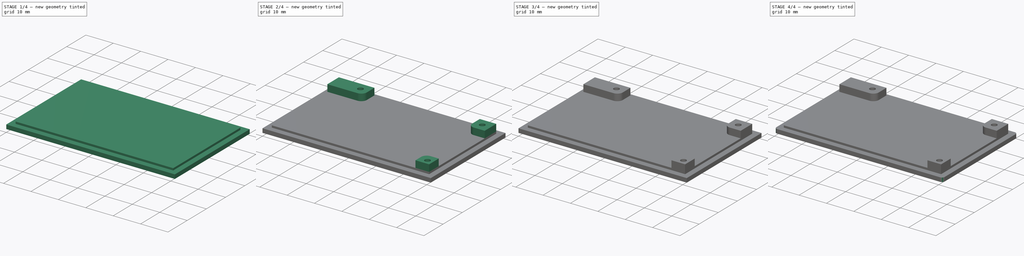
[diagram: build sequence overview — one tinted view per stage of 4, left to right]
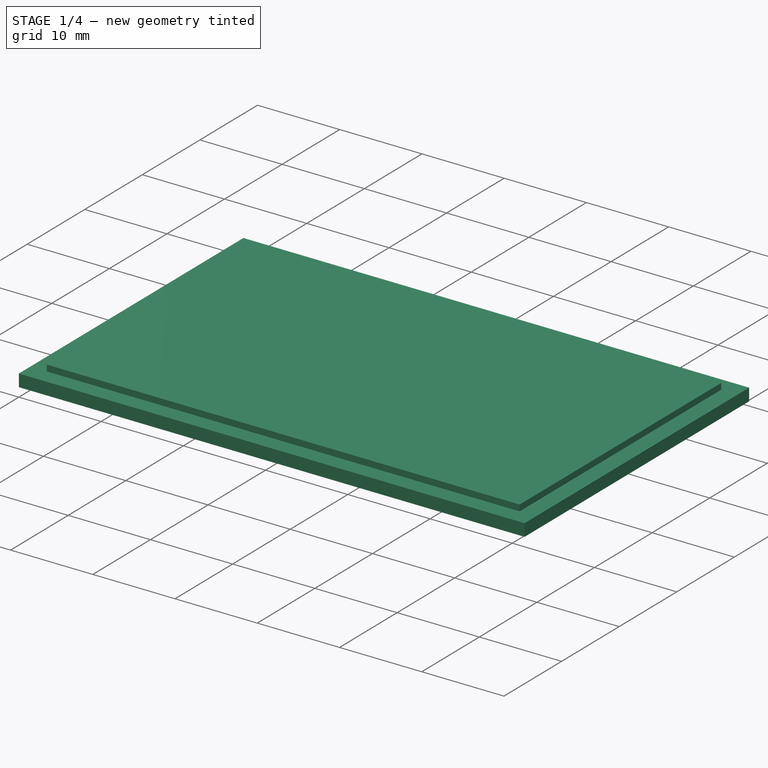
[diagram: stage 1 of 4 — iso view after this stage's code; geometry added in this stage tinted green]
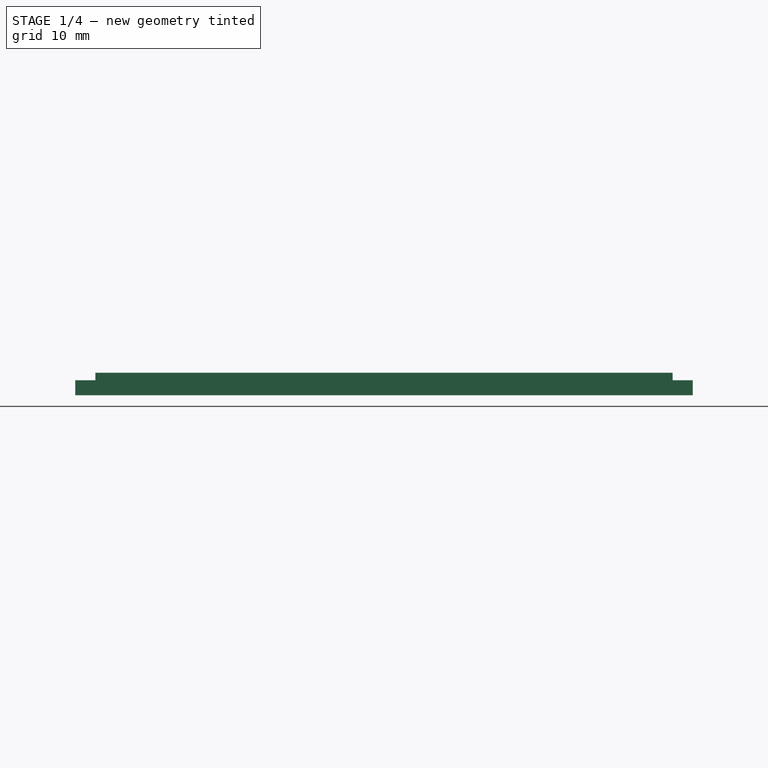
[diagram: stage 1 of 4 — front view after this stage's code; geometry added in this stage tinted green]
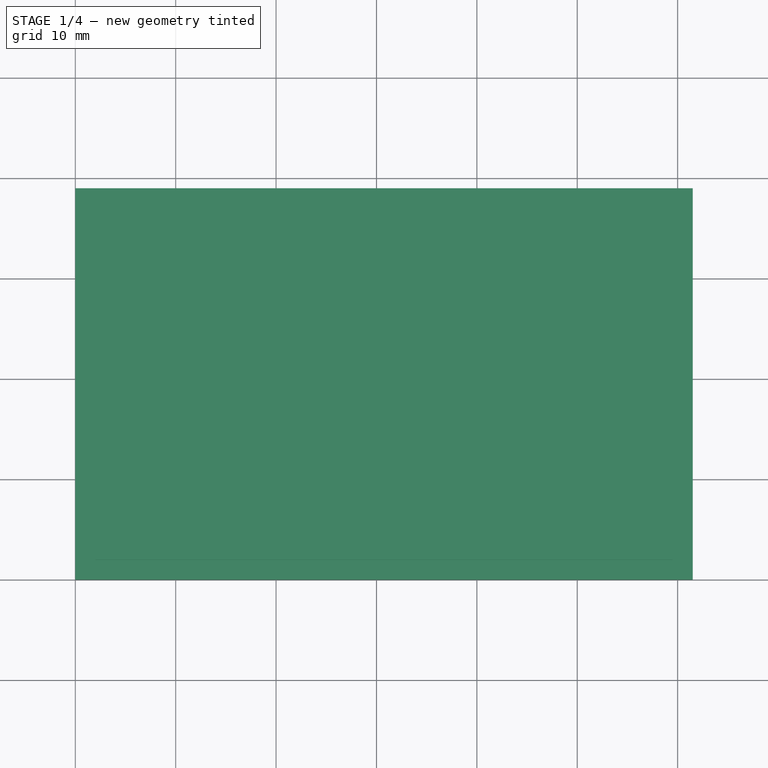
[diagram: stage 1 of 4 — top view after this stage's code; geometry added in this stage tinted green]
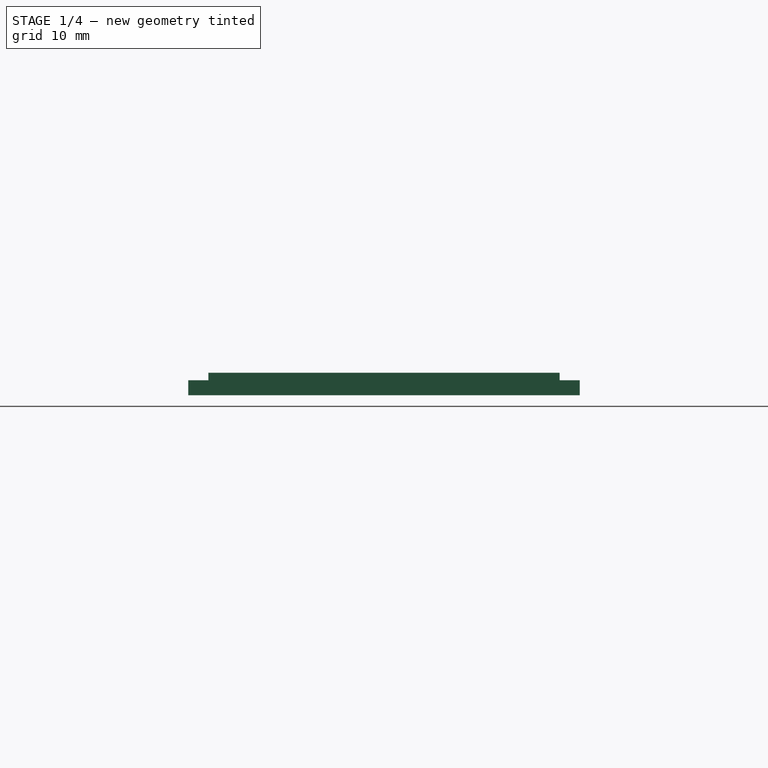
[diagram: stage 1 of 4 — right view after this stage's code; geometry added in this stage tinted green]
FCSTD DOCUMENT  (FreeCAD 0.17R13519 (Git))
Label: MH-Z14A-case
License: All rights reserved
LicenseURL: http://en.wikipedia.org/wiki/All_rights_reserved
objects: Sketcher::SketchObject×3, PartDesign::Pad×3, PartDesign::Pocket×3, PartDesign::Fillet×2, Spreadsheet::Sheet×1, PartDesign::Chamfer×1, PartDesign::Body×1
note: 19 computed .brp shape members not serialized (recipe doc carries the construction recipe); baked Part::Feature solids carry a one-line shape summary decoded from their .brp

FEATURE [Spreadsheet::Sheet] Spreadsheet  label="vals"
  cells = A1=board_w; B1(board_w)=57.5; A2=board_h; B2(board_h)=35; A3=board_tolerance; B3(board_tolerance)=0.5; A4=case_lattice_w; A5=case_thickness; B5(case_thickness)=1.5
FEATURE [Sketcher::SketchObject] Sketch
  MapMode = 5
  Support = -> [XY_Plane]
  expr: Constraints[9] = vals.board_w + vals.board_tolerance * 2 + vals.case_thickness * 2
  expr: Constraints[10] = vals.board_h + vals.board_tolerance * 2 + vals.case_thickness * 2
  sketch-geometry (4):
    g0: LineSegment StartX=0 StartY=0 StartZ=0 EndX=61.5 EndY=0 EndZ=0
    g1: LineSegment StartX=61.5 StartY=0 StartZ=0 EndX=61.5 EndY=39 EndZ=0
    g2: LineSegment StartX=61.5 StartY=39 StartZ=0 EndX=0 EndY=39 EndZ=0
    g3: LineSegment StartX=0 StartY=39 StartZ=0 EndX=0 EndY=0 EndZ=0
  constraints (11):
    c: Coincident(g0,g1)
    c: Coincident(g1,g2)
    c: Coincident(g2,g3)
    c: Coincident(g3,g0)
    c: Horizontal(g0)
    c: Horizontal(g2)
    c: Vertical(g1)
    c: Vertical(g3)
    c: Coincident(g0,g-1)
    c: DistanceX(g2,g2) = 61.5
    c: DistanceY(g1,g1) = 39
FEATURE [PartDesign::Pad] Pad
  Length = 1.5
  Length2 = 100
  Profile = -> Sketch
  Type = 0
  expr: Length = vals.case_thickness
FEATURE [Sketcher::SketchObject] Sketch002
  MapMode = 5
  Placement = pos=(0,0,1.5) rot=(0,0,1;0rad)
  Support = -> [Pad]
  expr: Constraints[7] = vals.board_h
  expr: Constraints[6] = vals.board_w
  expr: Constraints[8] = vals.board_tolerance + vals.case_thickness
  expr: Constraints[9] = vals.case_thickness + vals.board_tolerance
  sketch-geometry (4):
    g0: LineSegment StartX=2 StartY=37 StartZ=0 EndX=59.5 EndY=37 EndZ=0
    g1: LineSegment StartX=59.5 StartY=37 StartZ=0 EndX=59.5 EndY=2 EndZ=0
    g2: LineSegment StartX=59.5 StartY=2 StartZ=0 EndX=2 EndY=2 EndZ=0
    g3: LineSegment StartX=2 StartY=2 StartZ=0 EndX=2 EndY=37 EndZ=0
  constraints (10):
    c: Coincident(g2,g3)
    c: Coincident(g3,g0)
    c: Horizontal(g0)
    c: Horizontal(g2)
    c: Vertical(g1)
    c: Vertical(g3)
    c: DistanceX(g2,g2) = 57.5
    c: DistanceY(g1,g1) = 35
    c: DistanceY(g-1,g2) = 2
    c: DistanceX(g-1,g2) = 2
FEATURE [PartDesign::Pad] Pad001
  BaseFeature = -> Pad
  Length = 0.75
  Length2 = 100
  Profile = -> Sketch002
  Type = 0
  expr: Length = vals.case_thickness / 2
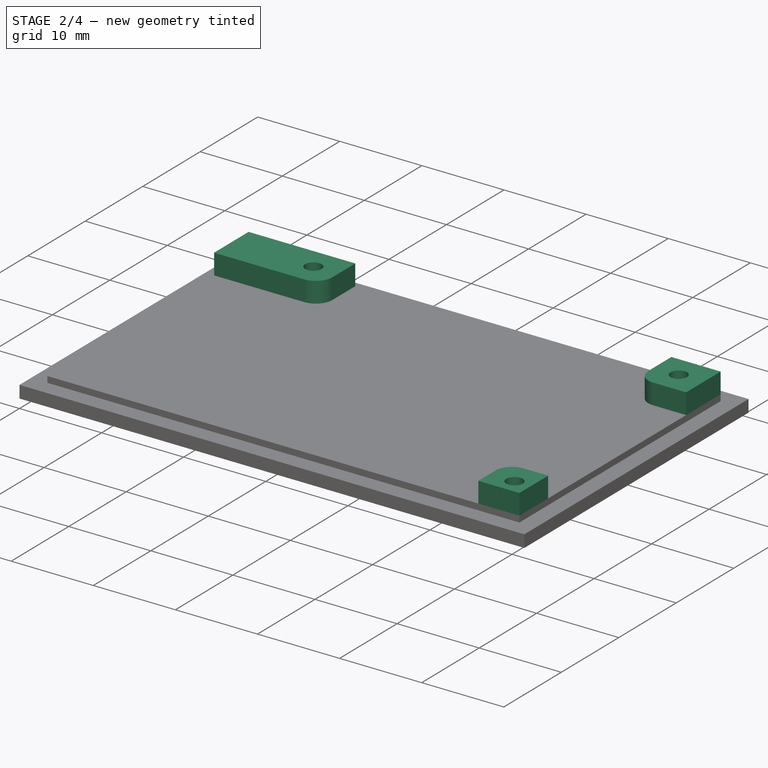
[diagram: stage 2 of 4 — iso view after this stage's code; geometry added in this stage tinted green]
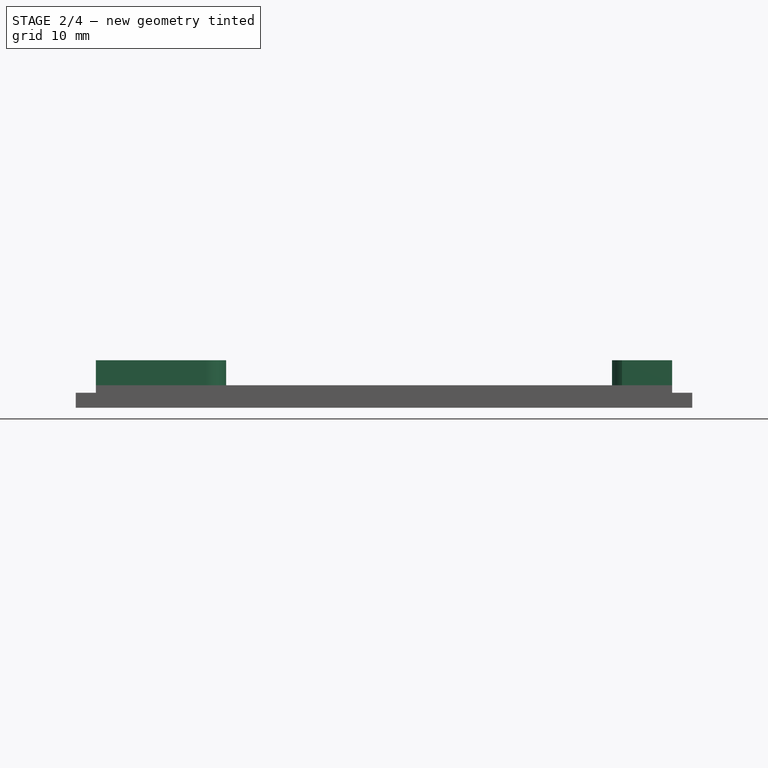
[diagram: stage 2 of 4 — front view after this stage's code; geometry added in this stage tinted green]
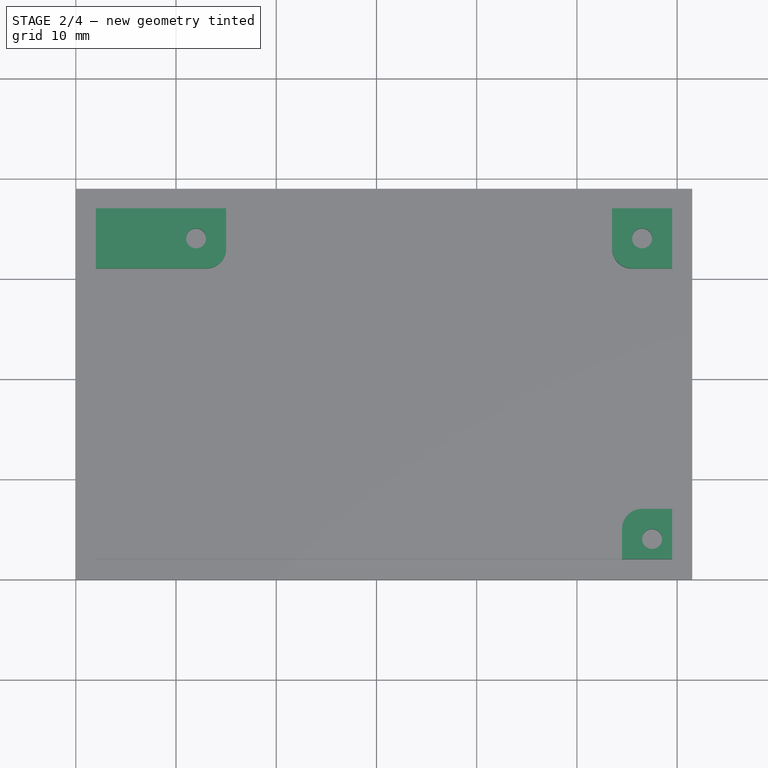
[diagram: stage 2 of 4 — top view after this stage's code; geometry added in this stage tinted green]
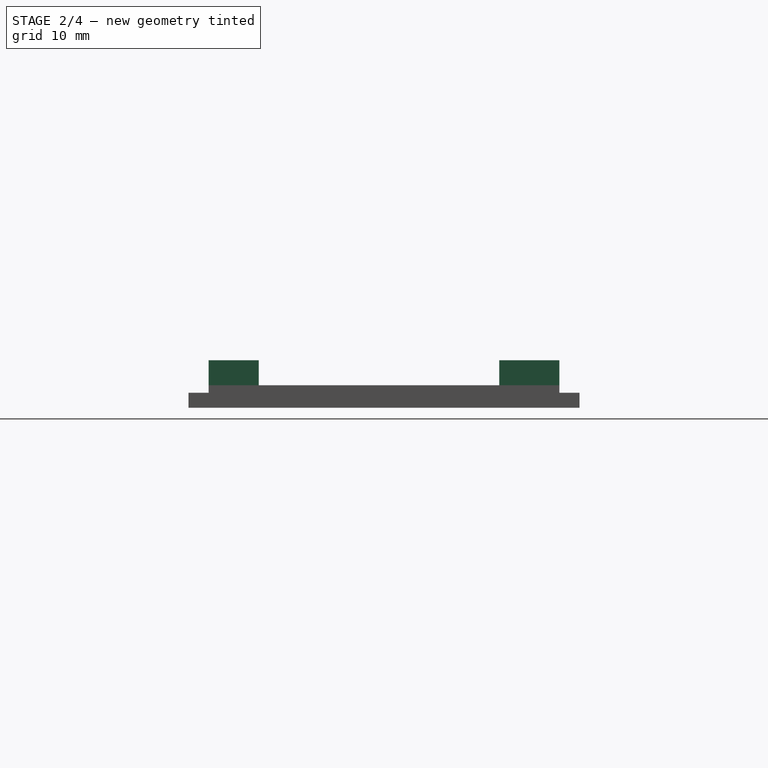
[diagram: stage 2 of 4 — right view after this stage's code; geometry added in this stage tinted green]
FEATURE [Sketcher::SketchObject] Sketch003
  MapMode = 5
  Placement = pos=(0,0,2.25) rot=(0,0,1;0rad)
  Support = -> [Pad001]
  expr: Constraints[49] = 3
  expr: Constraints[29] = 3
  expr: Constraints[11] = vals.case_thickness + vals.board_tolerance
  expr: Constraints[10] = vals.board_tolerance + vals.case_thickness
  expr: Constraints[8] = vals.board_w
  expr: Constraints[9] = vals.board_h
  sketch-geometry (21):
    g0: LineSegment [constr] StartX=2 StartY=37 StartZ=0 EndX=59.5 EndY=37 EndZ=0
    g1: LineSegment [constr] StartX=59.5 StartY=37 StartZ=0 EndX=59.5 EndY=2 EndZ=0
    g2: LineSegment [constr] StartX=59.5 StartY=2 StartZ=0 EndX=2 EndY=2 EndZ=0
    g3: LineSegment [constr] StartX=2 StartY=2 StartZ=0 EndX=2 EndY=37 EndZ=0
    g4: Circle CenterX=12 CenterY=34 CenterZ=0 NormalX=0 NormalY=0 NormalZ=1 AngleXU=0 Radius=1
    g5: Circle CenterX=56.5 CenterY=34 CenterZ=0 NormalX=0 NormalY=0 NormalZ=1 AngleXU=0 Radius=1
    g6: Circle CenterX=57.5 CenterY=4 CenterZ=0 NormalX=0 NormalY=0 NormalZ=1 AngleXU=0 Radius=1
    g7: LineSegment StartX=54.5 StartY=7 StartZ=0 EndX=59.5 EndY=7 EndZ=0
    g8: LineSegment StartX=59.5 StartY=7 StartZ=0 EndX=59.5 EndY=2 EndZ=0
    g9: LineSegment StartX=59.5 StartY=2 StartZ=0 EndX=54.5 EndY=2 EndZ=0
    g10: LineSegment StartX=54.5 StartY=2 StartZ=0 EndX=54.5 EndY=7 EndZ=0
    g11: LineSegment StartX=59.5 StartY=37 StartZ=0 EndX=53.5 EndY=37 EndZ=0
    g12: LineSegment StartX=53.5 StartY=37 StartZ=0 EndX=53.5 EndY=31 EndZ=0
    g13: LineSegment StartX=53.5 StartY=31 StartZ=0 EndX=59.5 EndY=31 EndZ=0
    g14: LineSegment StartX=59.5 StartY=31 StartZ=0 EndX=59.5 EndY=37 EndZ=0
    g15: LineSegment StartX=9 StartY=37 StartZ=0 EndX=15 EndY=37 EndZ=0
    g16: LineSegment StartX=15 StartY=37 StartZ=0 EndX=15 EndY=31 EndZ=0
    g17: LineSegment StartX=15 StartY=31 StartZ=0 EndX=9 EndY=31 EndZ=0
    g18: LineSegment StartX=2 StartY=37 StartZ=0 EndX=9 EndY=37 EndZ=0
    g19: LineSegment StartX=9 StartY=31 StartZ=0 EndX=2 EndY=31 EndZ=0
    g20: LineSegment StartX=2 StartY=31 StartZ=0 EndX=2 EndY=37 EndZ=0
  constraints (62):
    c: Coincident(g0,g1)
    c: Coincident(g1,g2)
    c: Coincident(g2,g3)
    c: Coincident(g3,g0)
    c: Horizontal(g0)
    c: Horizontal(g2)
    c: Vertical(g1)
    c: Vertical(g3)
    c: DistanceX(g2,g2) = 57.5
    c: DistanceY(g1,g1) = 35
    c: DistanceY(g-1,g2) = 2
    c: DistanceX(g-1,g2) = 2
    c: Radius(g4) = 1  'hole_radius'
    c: DistanceX(g0,g4) = 10
    c: DistanceY(g4,g0) = 3  'top_hole_offset_y'
    c: Equal(g4,g5) = 1.5  'hole_radius'
    c: DistanceY(g5,g0) = 3
    c: DistanceX(g5,g0) = 3
    c: Equal(g4,g6) = 1.5  'hole_radius'
    c: DistanceY(g1,g6) = 2
    c: Coincident(g7,g8)
    c: Coincident(g8,g9)
    c: Coincident(g9,g10)
    c: Coincident(g10,g7)
    c: Horizontal(g7)
    c: Horizontal(g9)
    c: Vertical(g8)
    c: Vertical(g10)
    c: Coincident(g8,g1)
    c: DistanceY(g6,g7) = 3
    c: DistanceX(g7,g6) = 3
    c: DistanceX(g6,g1) = 2
    c: Coincident(g11,g12)
    c: Coincident(g12,g13)
    c: Coincident(g13,g14)
    c: Coincident(g14,g11)
    c: Horizontal(g11)
    c: Horizontal(g13)
    c: Vertical(g12)
    c: Vertical(g14)
    c: Coincident(g11,g0)
    c: Equal(g12,g13)
    c: DistanceY(g12,g5) = 3
    c: Coincident(g15,g16)
    c: Coincident(g16,g17)
    c: Horizontal(g15)
    c: Horizontal(g17)
    c: Vertical(g16)
    c: PointOnObject(g15,g0)
    c: DistanceX(g17,g4) = 3
    c: DistanceY(g17,g4) = 3
    c: Coincident(g19,g20)
    c: Coincident(g20,g18)
    c: Horizontal(g18)
    c: Horizontal(g19)
    c: Vertical(g20)
    c: Coincident(g18,g0)
    c: Equal(g17,g16)
    c: Equal(g16,g15)
    c: Equal(g18,g19)
    c: Equal(g20,g16)
    c: Coincident(g17,g19)
FEATURE [PartDesign::Pad] Pad002
  BaseFeature = -> Pad001
  Length = 2.5
  Length2 = 100
  Profile = -> Sketch003
  Type = 0
FEATURE [PartDesign::Fillet] Fillet
  Base = -> Pad002 [Edge63,Edge59,Edge57]
  BaseFeature = -> Pad002
  Radius = 2
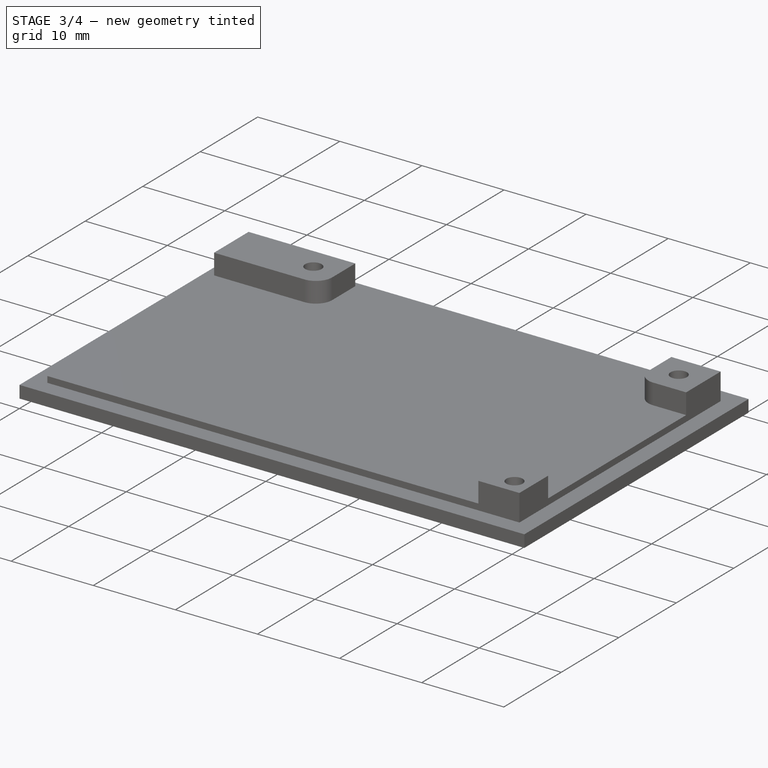
[diagram: stage 3 of 4 — iso view after this stage's code; geometry added in this stage tinted green]
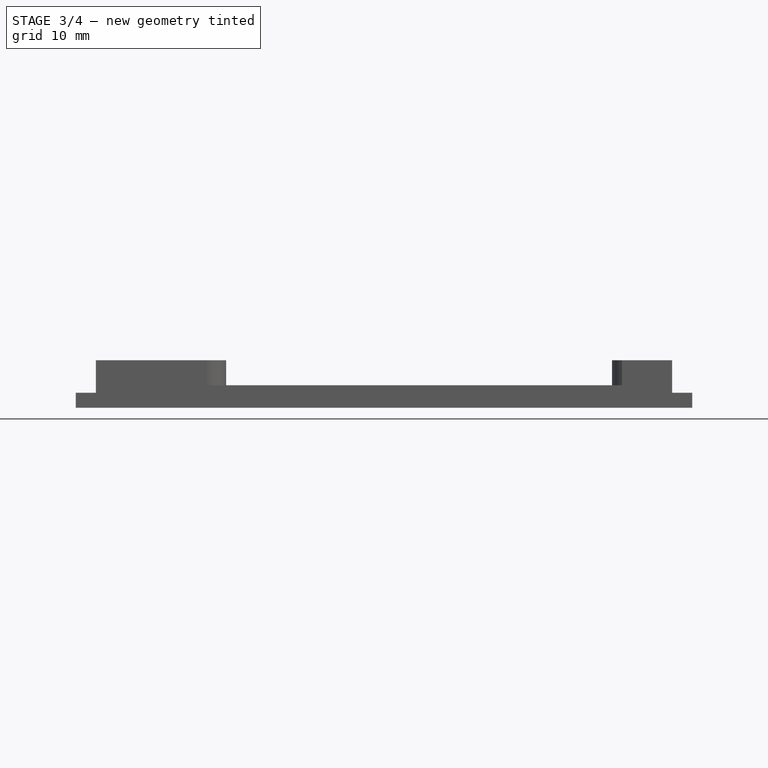
[diagram: stage 3 of 4 — front view after this stage's code; geometry added in this stage tinted green]
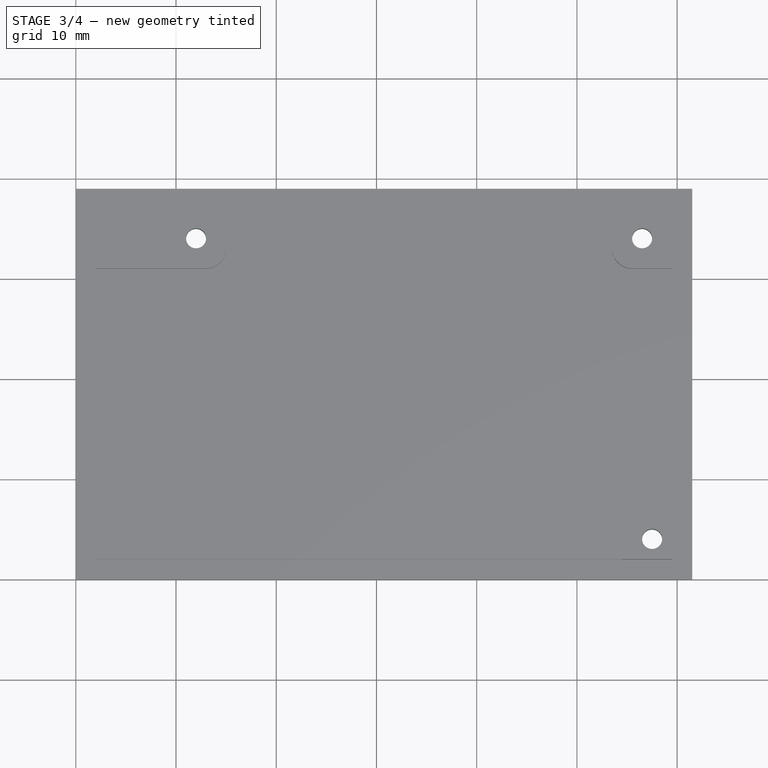
[diagram: stage 3 of 4 — top view after this stage's code; geometry added in this stage tinted green]
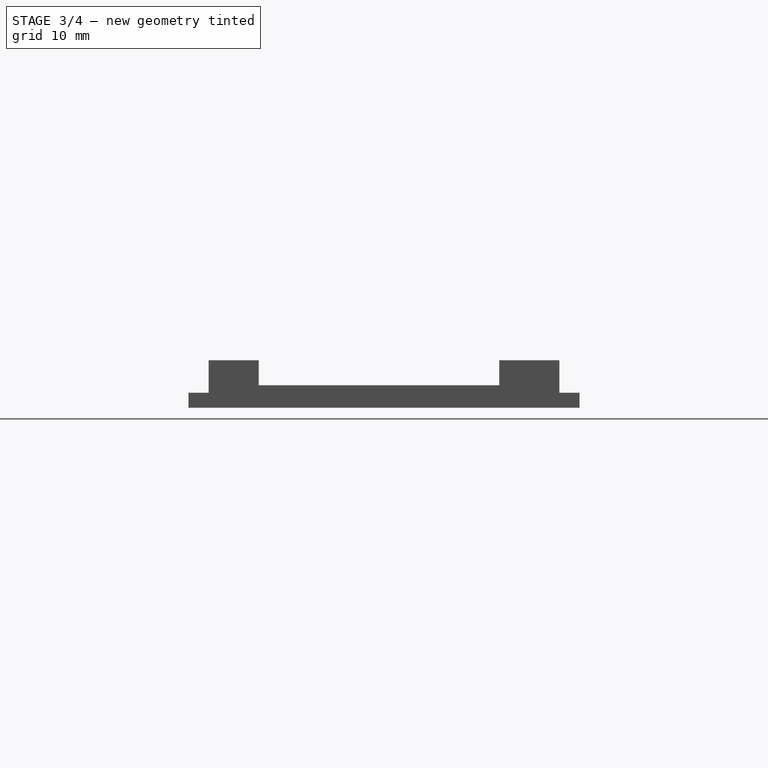
[diagram: stage 3 of 4 — right view after this stage's code; geometry added in this stage tinted green]
FEATURE [PartDesign::Pocket] Pocket
  BaseFeature = -> Fillet
  Length = 5
  Length2 = 100
  Profile = -> Fillet [Face36]
  Type = 0
FEATURE [PartDesign::Pocket] Pocket001
  BaseFeature = -> Pocket
  Length = 5
  Length2 = 100
  Profile = -> Pocket [Face37]
  Type = 0
FEATURE [PartDesign::Pocket] Pocket002
  BaseFeature = -> Pocket001
  Length = 5
  Length2 = 100
  Profile = -> Pocket001 [Face34]
  Type = 0
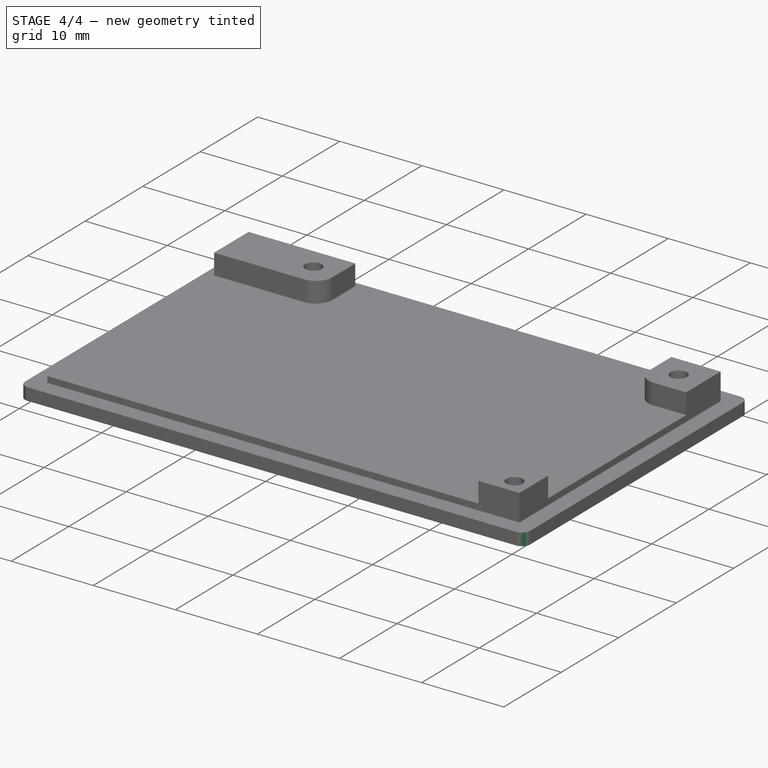
[diagram: stage 4 of 4 — iso view after this stage's code; geometry added in this stage tinted green]
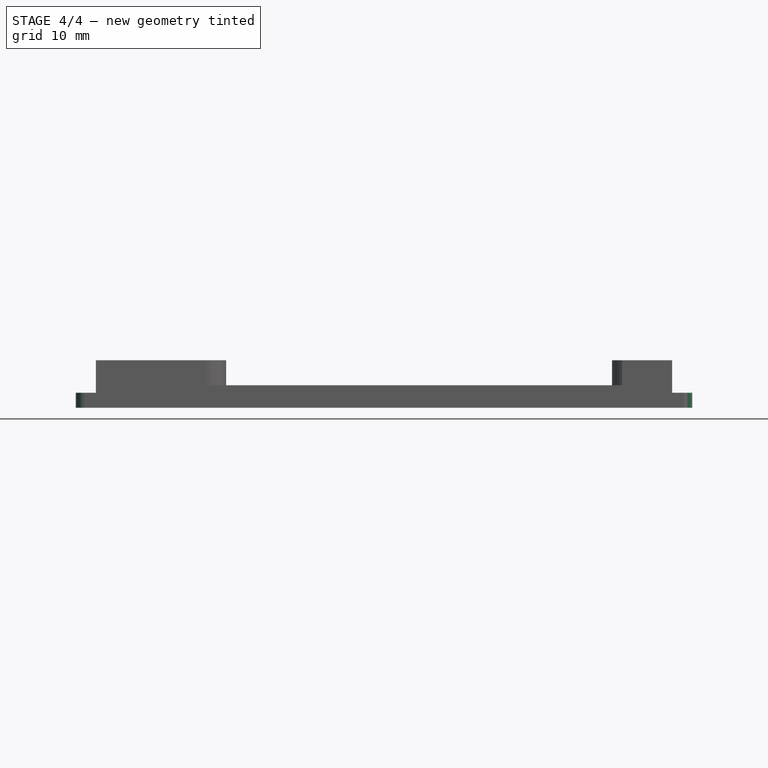
[diagram: stage 4 of 4 — front view after this stage's code; geometry added in this stage tinted green]
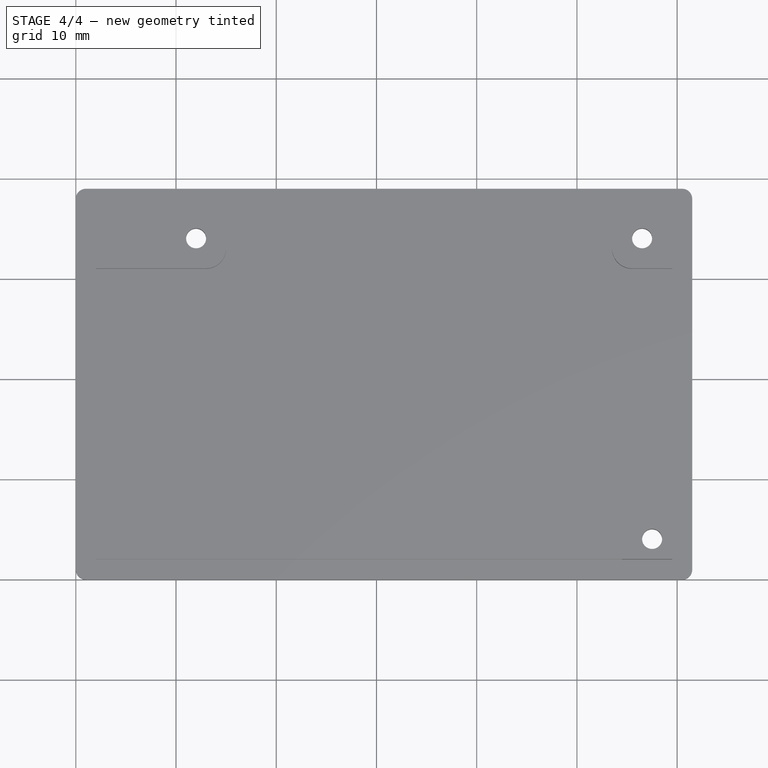
[diagram: stage 4 of 4 — top view after this stage's code; geometry added in this stage tinted green]
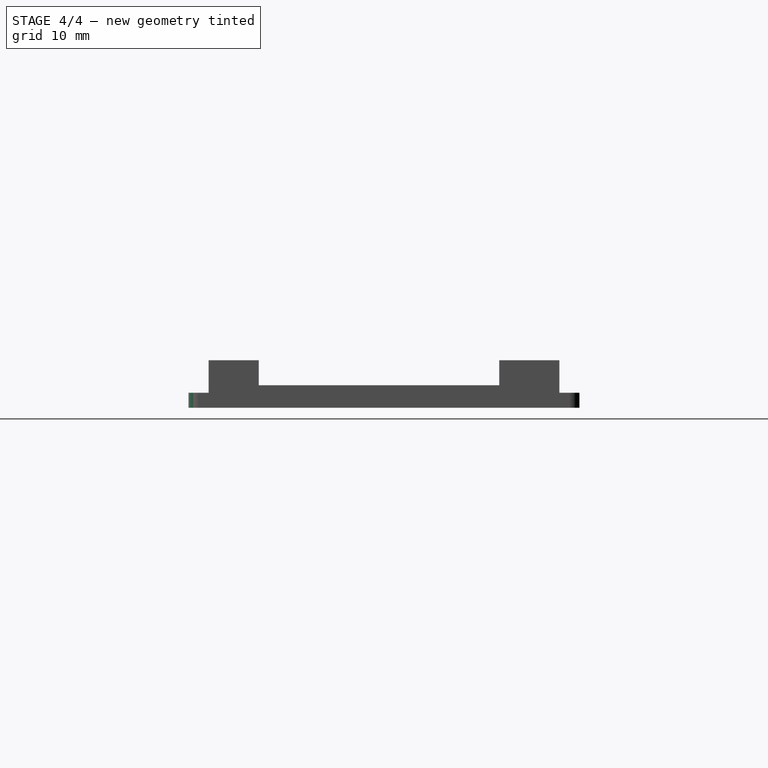
[diagram: stage 4 of 4 — right view after this stage's code; geometry added in this stage tinted green]
FEATURE [PartDesign::Chamfer] Chamfer
  Base = -> Pocket002 [Edge86,Edge87,Edge88]
  BaseFeature = -> Pocket002
  Size = 1
FEATURE [PartDesign::Fillet] Fillet001
  Base = -> Chamfer [Edge19,Edge20,Edge24,Edge22]
  BaseFeature = -> Chamfer
  Radius = 1
FEATURE [PartDesign::Body] Body  label="Bottom Part"
  Group = -> [Sketch,Pad,Sketch002,Pad001,Sketch003,Pad002,Fillet,Pocket,Pocket001,Pocket002,Chamfer,Fillet001]
  Origin = -> Origin
  Tip = -> Fillet001
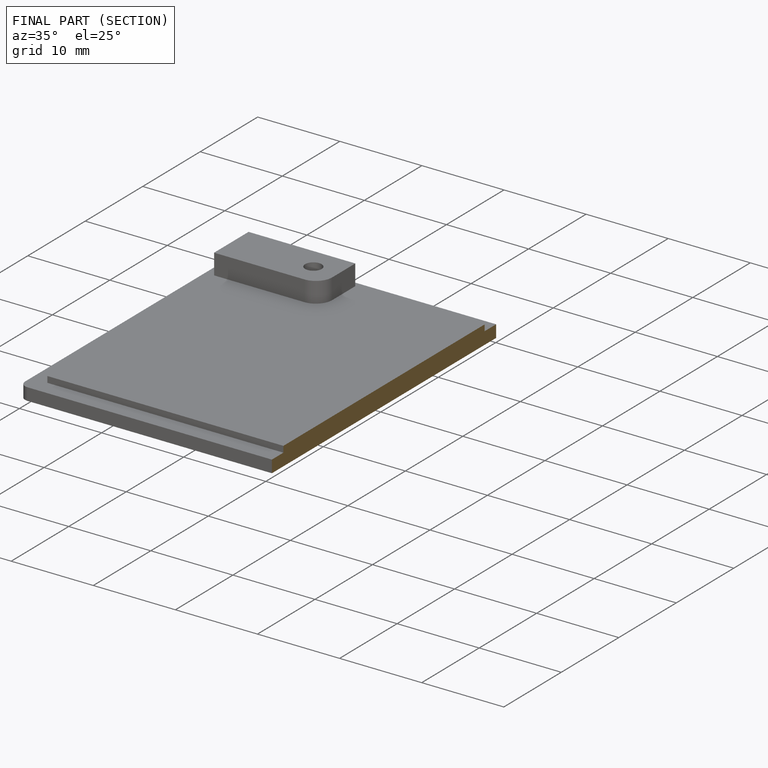
[diagram: finished part — half-section view (interior)]
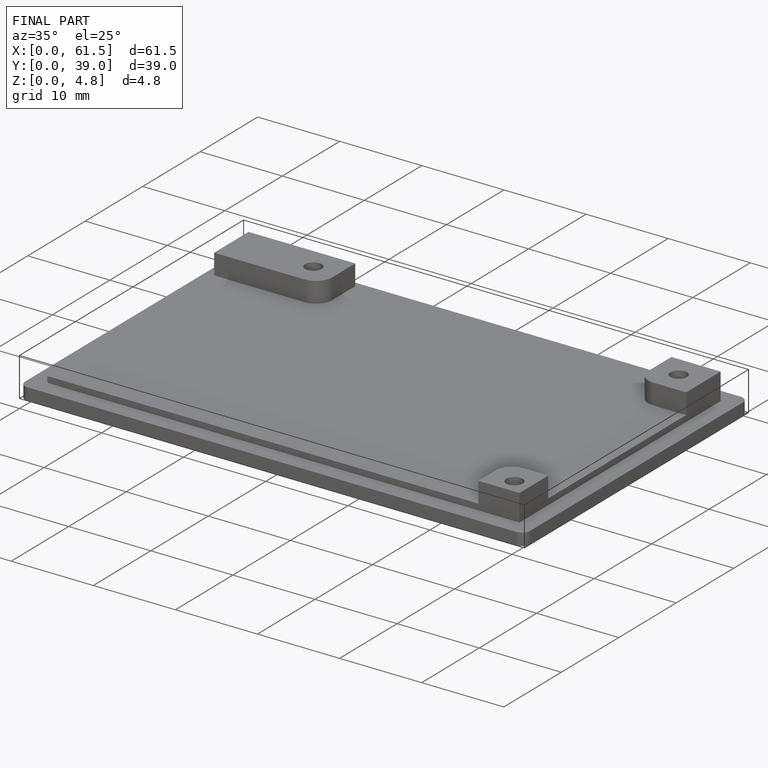
[diagram: finished part — iso view with bounding-box wireframe]
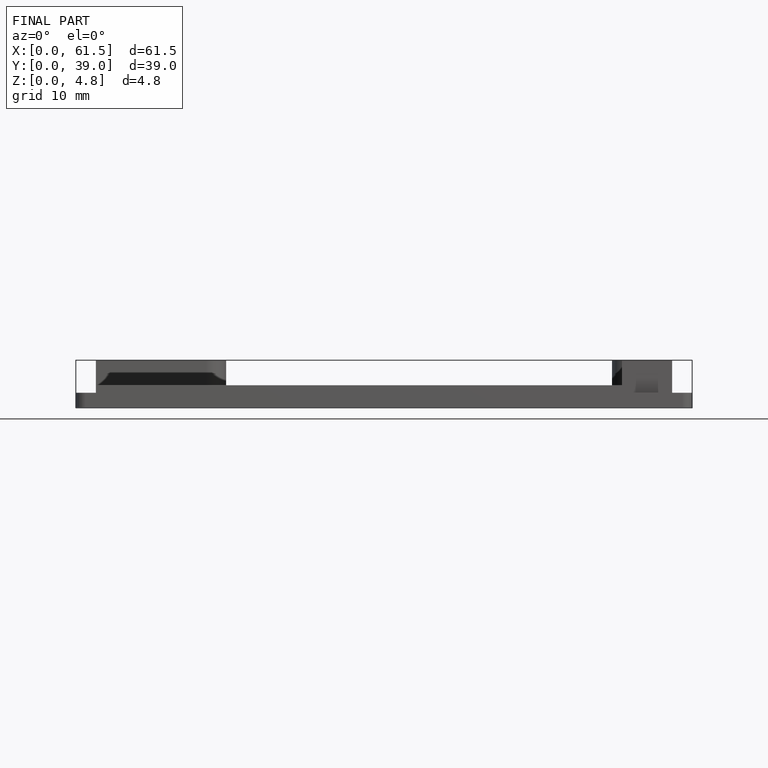
[diagram: finished part — front view with bounding-box wireframe]
